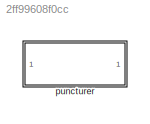
MODEL slx_2ff99608f0cc
KIND model
CONFIG AbsTol = auto
CONFIG EnableMultiTasking = off
CONFIG FixedStep = auto
CONFIG MaxStep = auto
CONFIG MinStep = auto
CONFIG RelTol = 1e-3
CONFIG SampleTimeConstraint = Unconstrained
CONFIG SolverName = FixedStepDiscrete
CONFIG StartTime = 0.0
CONFIG StopTime = 10.0
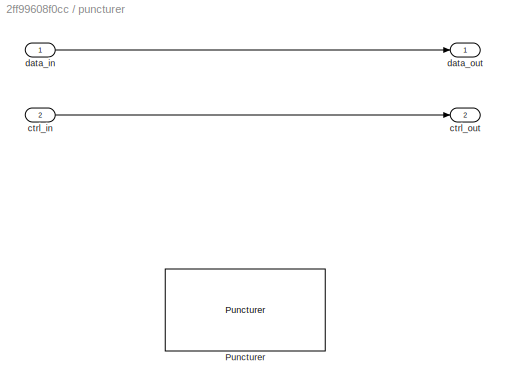
BLOCK [SubSystem] puncturer
BLOCK [Reference] puncturer/Puncturer  REF=whdledac/Puncturer
  Commented = on
  SourceBlock = whdledac/Puncturer
  SourceType = Puncturer
BLOCK [Inport] puncturer/ctrl_in
  Port = 2
BLOCK [Outport] puncturer/ctrl_out
  Port = 2
BLOCK [Inport] puncturer/data_in
BLOCK [Outport] puncturer/data_out
LINE puncturer/ctrl_in:1 -> puncturer/ctrl_out:1
LINE puncturer/data_in:1 -> puncturer/data_out:1
